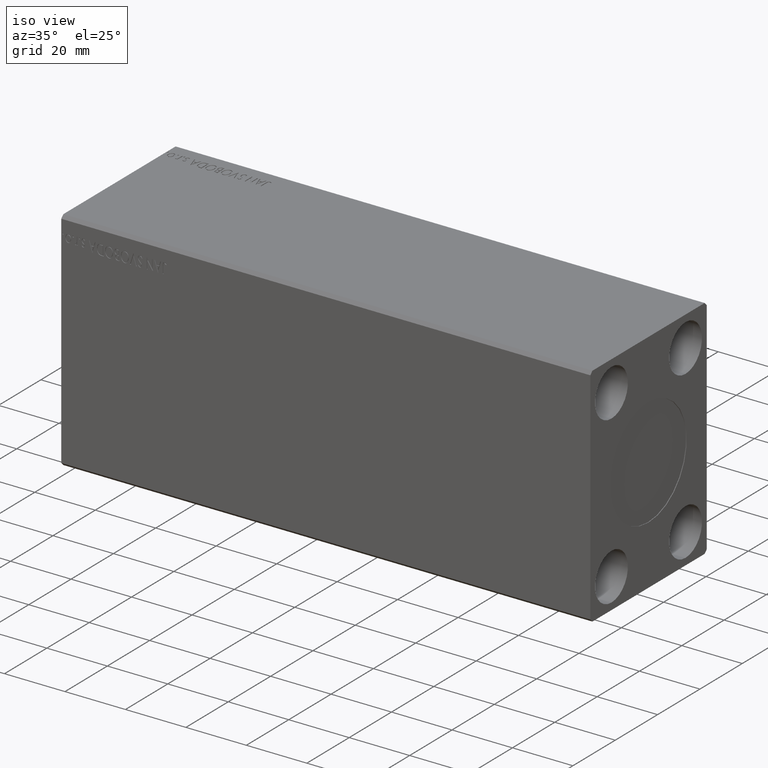
[diagram: clean part render]
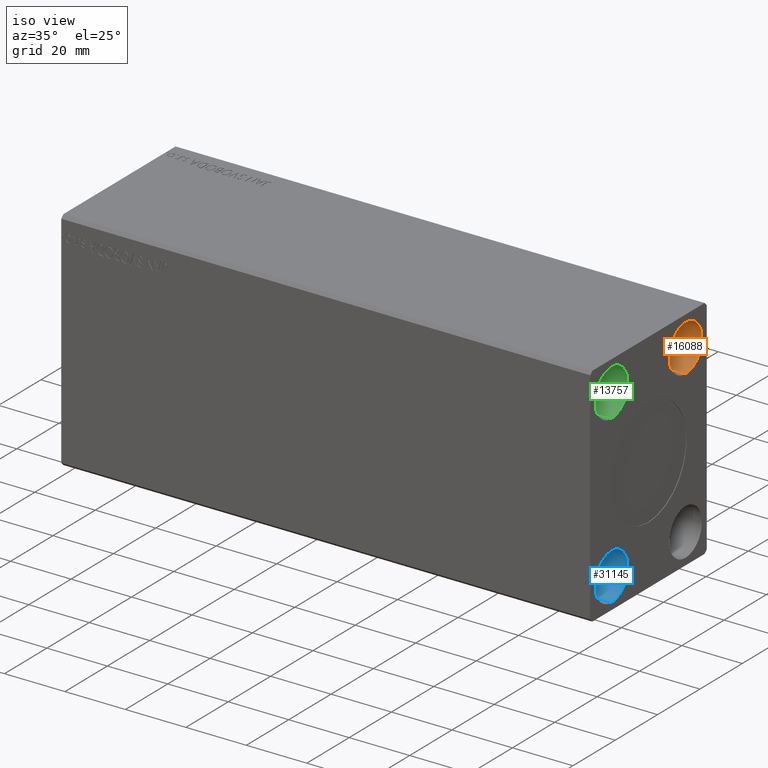
[diagram: same view with three faces highlighted in distinct colors, each labeled with its STEP entity id]
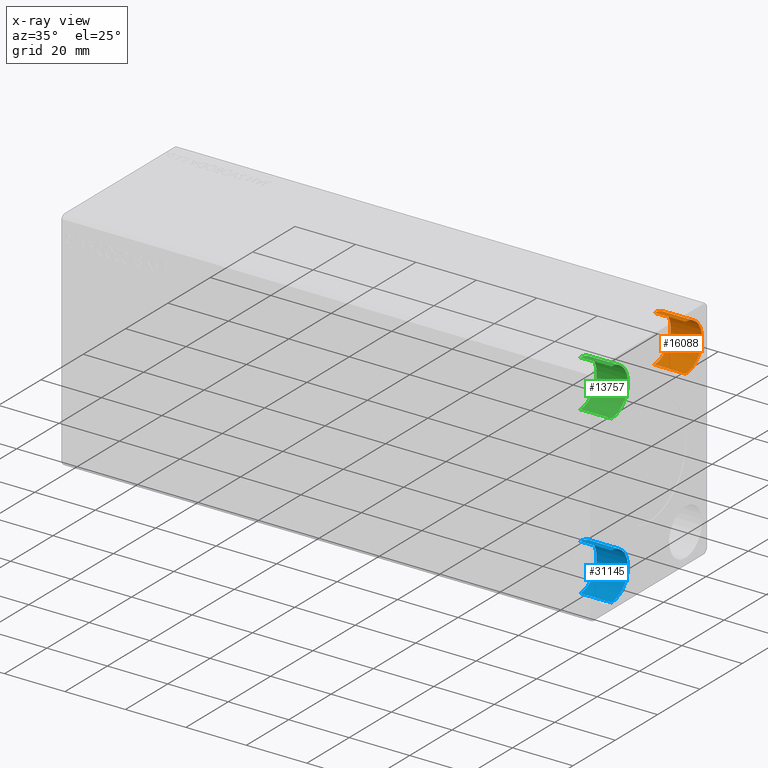
[diagram: x-ray of the same camera — body ghosted, the three highlighted faces saturated]
A machine part, iso view with three faces highlighted in distinct colors.
The next image is the same camera in x-ray (body ghosted, the three faces saturated) — at least one of them is partly hidden behind the body in this view.
Their STEP definitions:

[orange] entity #16088 — the highlighted cylindrical surface (edge-blend (fillet) strip) has radius 7.75 mm, axis along (1, -0, -0).
#805 = CARTESIAN_POINT ( 'NONE',  ( 164.6699999999999875, 17.50000000000000000, 35.25000000000000000 ) ) ;
#1330 = VERTEX_POINT ( 'NONE', #25625 ) ;
#3326 = FACE_OUTER_BOUND ( 'NONE', #16795, .T. ) ;
#5525 = VECTOR ( 'NONE', #19272, 1000.000000000000000 ) ;
#5936 = CARTESIAN_POINT ( 'NONE',  ( 164.6699999999999875, 17.50000000000000000, 19.74999999999999645 ) ) ;
#7333 = EDGE_CURVE ( 'NONE', #1330, #9648, #31793, .T. ) ;
#7776 = VERTEX_POINT ( 'NONE', #37108 ) ;
#9309 = ORIENTED_EDGE ( 'NONE', *, *, #24155, .F. ) ;
#9513 = EDGE_CURVE ( 'NONE', #9648, #7776, #26234, .T. ) ;
#9648 = VERTEX_POINT ( 'NONE', #13900 ) ;
#12568 = ORIENTED_EDGE ( 'NONE', *, *, #7333, .T. ) ;
#13900 = CARTESIAN_POINT ( 'NONE',  ( 175.0000000000000000, 17.50000000000000000, 19.74999999999999645 ) ) ;
#16088 = ADVANCED_FACE ( 'NONE', ( #3326 ), #31992, .F. ) ;
#16442 = CARTESIAN_POINT ( 'NONE',  ( 164.6699999999999875, 17.50000000000000000, 27.50000000000000000 ) ) ;
#16795 = EDGE_LOOP ( 'NONE', ( #42071, #9309, #12568, #25992 ) ) ;
#19044 = DIRECTION ( 'NONE',  ( 0.000000000000000000, 0.000000000000000000, -1.000000000000000000 ) ) ;
#19272 = DIRECTION ( 'NONE',  ( 1.000000000000000000, -0.000000000000000000, -0.000000000000000000 ) ) ;
#21524 = CARTESIAN_POINT ( 'NONE',  ( 164.6699999999999875, 17.50000000000000000, 27.50000000000000000 ) ) ;
#21665 = VECTOR ( 'NONE', #23626, 1000.000000000000000 ) ;
#22320 = DIRECTION ( 'NONE',  ( 0.000000000000000000, 0.000000000000000000, -1.000000000000000000 ) ) ;
#23466 = CARTESIAN_POINT ( 'NONE',  ( 164.6699999999999875, 17.50000000000000000, 35.25000000000000000 ) ) ;
#23626 = DIRECTION ( 'NONE',  ( 1.000000000000000000, -0.000000000000000000, -0.000000000000000000 ) ) ;
#24155 = EDGE_CURVE ( 'NONE', #1330, #33340, #33187, .T. ) ;
#24332 = DIRECTION ( 'NONE',  ( 0.000000000000000000, 0.000000000000000000, -1.000000000000000000 ) ) ;
#24966 = DIRECTION ( 'NONE',  ( 1.000000000000000000, -0.000000000000000000, -0.000000000000000000 ) ) ;
#25625 = CARTESIAN_POINT ( 'NONE',  ( 164.6699999999999875, 17.50000000000000000, 19.74999999999999645 ) ) ;
#25724 = DIRECTION ( 'NONE',  ( 1.000000000000000000, -0.000000000000000000, -0.000000000000000000 ) ) ;
#25992 = ORIENTED_EDGE ( 'NONE', *, *, #9513, .T. ) ;
#26213 = AXIS2_PLACEMENT_3D ( 'NONE', #16442, #25724, #19044 ) ;
#26234 = CIRCLE ( 'NONE', #31734, 7.750000000000003553 ) ;
#27084 = LINE ( 'NONE', #805, #21665 ) ;
#29231 = DIRECTION ( 'NONE',  ( 1.000000000000000000, -0.000000000000000000, -0.000000000000000000 ) ) ;
#31734 = AXIS2_PLACEMENT_3D ( 'NONE', #36330, #29231, #22320 ) ;
#31793 = LINE ( 'NONE', #5936, #5525 ) ;
#31992 = CYLINDRICAL_SURFACE ( 'NONE', #26213, 7.750000000000003553 ) ;
#32693 = EDGE_CURVE ( 'NONE', #33340, #7776, #27084, .T. ) ;
#33187 = CIRCLE ( 'NONE', #33881, 7.750000000000003553 ) ;
#33340 = VERTEX_POINT ( 'NONE', #23466 ) ;
#33881 = AXIS2_PLACEMENT_3D ( 'NONE', #21524, #24966, #24332 ) ;
#36330 = CARTESIAN_POINT ( 'NONE',  ( 175.0000000000000000, 17.50000000000000000, 27.50000000000000000 ) ) ;
#37108 = CARTESIAN_POINT ( 'NONE',  ( 175.0000000000000000, 17.50000000000000000, 35.25000000000000000 ) ) ;
#42071 = ORIENTED_EDGE ( 'NONE', *, *, #32693, .F. ) ;

[blue] entity #31145 — the highlighted cylindrical surface (edge-blend (fillet) strip) has radius 7.75 mm, axis along (1, -0, -0).
#364 = FACE_OUTER_BOUND ( 'NONE', #29555, .T. ) ;
#576 = CYLINDRICAL_SURFACE ( 'NONE', #34059, 7.750000000000003553 ) ;
#3048 = CARTESIAN_POINT ( 'NONE',  ( 164.6699999999999875, -17.50000000000000000, -35.25000000000000000 ) ) ;
#3502 = CARTESIAN_POINT ( 'NONE',  ( 175.0000000000000000, -17.50000000000000000, -19.74999999999999645 ) ) ;
#4853 = CARTESIAN_POINT ( 'NONE',  ( 175.0000000000000000, -17.50000000000000000, -27.50000000000000000 ) ) ;
#4933 = VECTOR ( 'NONE', #31856, 1000.000000000000000 ) ;
#6044 = VERTEX_POINT ( 'NONE', #3502 ) ;
#6392 = DIRECTION ( 'NONE',  ( 0.000000000000000000, 0.000000000000000000, -1.000000000000000000 ) ) ;
#8998 = LINE ( 'NONE', #21339, #4933 ) ;
#10510 = CIRCLE ( 'NONE', #16687, 7.750000000000003553 ) ;
#13756 = VERTEX_POINT ( 'NONE', #3048 ) ;
#14320 = DIRECTION ( 'NONE',  ( 0.000000000000000000, 0.000000000000000000, -1.000000000000000000 ) ) ;
#14838 = DIRECTION ( 'NONE',  ( 0.000000000000000000, 0.000000000000000000, -1.000000000000000000 ) ) ;
#15573 = DIRECTION ( 'NONE',  ( 1.000000000000000000, -0.000000000000000000, -0.000000000000000000 ) ) ;
#16287 = DIRECTION ( 'NONE',  ( 1.000000000000000000, -0.000000000000000000, -0.000000000000000000 ) ) ;
#16687 = AXIS2_PLACEMENT_3D ( 'NONE', #23744, #28413, #14838 ) ;
#17421 = AXIS2_PLACEMENT_3D ( 'NONE', #4853, #30724, #14320 ) ;
#19232 = CARTESIAN_POINT ( 'NONE',  ( 164.6699999999999875, -17.50000000000000000, -19.74999999999999645 ) ) ;
#19439 = ORIENTED_EDGE ( 'NONE', *, *, #26661, .T. ) ;
#20352 = ORIENTED_EDGE ( 'NONE', *, *, #22890, .F. ) ;
#20814 = ORIENTED_EDGE ( 'NONE', *, *, #22141, .T. ) ;
#21339 = CARTESIAN_POINT ( 'NONE',  ( 164.6699999999999875, -17.50000000000000000, -35.25000000000000000 ) ) ;
#22141 = EDGE_CURVE ( 'NONE', #13756, #26491, #8998, .T. ) ;
#22890 = EDGE_CURVE ( 'NONE', #40724, #6044, #28950, .T. ) ;
#22931 = CIRCLE ( 'NONE', #17421, 7.750000000000003553 ) ;
#23744 = CARTESIAN_POINT ( 'NONE',  ( 164.6699999999999875, -17.50000000000000000, -27.50000000000000000 ) ) ;
#25421 = EDGE_CURVE ( 'NONE', #13756, #40724, #10510, .T. ) ;
#26491 = VERTEX_POINT ( 'NONE', #41988 ) ;
#26661 = EDGE_CURVE ( 'NONE', #26491, #6044, #22931, .T. ) ;
#26977 = VECTOR ( 'NONE', #15573, 1000.000000000000000 ) ;
#28413 = DIRECTION ( 'NONE',  ( 1.000000000000000000, -0.000000000000000000, -0.000000000000000000 ) ) ;
#28950 = LINE ( 'NONE', #19232, #26977 ) ;
#29555 = EDGE_LOOP ( 'NONE', ( #20352, #32163, #20814, #19439 ) ) ;
#30724 = DIRECTION ( 'NONE',  ( 1.000000000000000000, -0.000000000000000000, -0.000000000000000000 ) ) ;
#31145 = ADVANCED_FACE ( 'NONE', ( #364 ), #576, .F. ) ;
#31856 = DIRECTION ( 'NONE',  ( 1.000000000000000000, -0.000000000000000000, -0.000000000000000000 ) ) ;
#31950 = CARTESIAN_POINT ( 'NONE',  ( 164.6699999999999875, -17.50000000000000000, -19.74999999999999645 ) ) ;
#32163 = ORIENTED_EDGE ( 'NONE', *, *, #25421, .F. ) ;
#34059 = AXIS2_PLACEMENT_3D ( 'NONE', #36561, #16287, #6392 ) ;
#36561 = CARTESIAN_POINT ( 'NONE',  ( 164.6699999999999875, -17.50000000000000000, -27.50000000000000000 ) ) ;
#40724 = VERTEX_POINT ( 'NONE', #31950 ) ;
#41988 = CARTESIAN_POINT ( 'NONE',  ( 175.0000000000000000, -17.50000000000000000, -35.25000000000000000 ) ) ;

[green] entity #13757 — the highlighted cylindrical surface (edge-blend (fillet) strip) has radius 7.75 mm, axis along (1, -0, -0).
#4731 = VERTEX_POINT ( 'NONE', #37629 ) ;
#5643 = DIRECTION ( 'NONE',  ( 0.000000000000000000, 0.000000000000000000, -1.000000000000000000 ) ) ;
#5841 = EDGE_CURVE ( 'NONE', #25646, #9578, #24069, .T. ) ;
#5893 = VERTEX_POINT ( 'NONE', #35619 ) ;
#6408 = DIRECTION ( 'NONE',  ( 1.000000000000000000, -0.000000000000000000, -0.000000000000000000 ) ) ;
#7561 = VECTOR ( 'NONE', #19609, 1000.000000000000000 ) ;
#9578 = VERTEX_POINT ( 'NONE', #27475 ) ;
#9788 = ORIENTED_EDGE ( 'NONE', *, *, #5841, .T. ) ;
#12936 = CYLINDRICAL_SURFACE ( 'NONE', #35274, 7.750000000000003553 ) ;
#13757 = ADVANCED_FACE ( 'NONE', ( #25230 ), #12936, .F. ) ;
#14088 = CARTESIAN_POINT ( 'NONE',  ( 164.6699999999999875, -17.50000000000000000, 27.50000000000000000 ) ) ;
#14744 = VECTOR ( 'NONE', #6408, 1000.000000000000000 ) ;
#16948 = CARTESIAN_POINT ( 'NONE',  ( 175.0000000000000000, -17.50000000000000000, 27.50000000000000000 ) ) ;
#17158 = ORIENTED_EDGE ( 'NONE', *, *, #17258, .T. ) ;
#17258 = EDGE_CURVE ( 'NONE', #9578, #5893, #23265, .T. ) ;
#17887 = ORIENTED_EDGE ( 'NONE', *, *, #35586, .F. ) ;
#19609 = DIRECTION ( 'NONE',  ( 1.000000000000000000, -0.000000000000000000, -0.000000000000000000 ) ) ;
#21527 = EDGE_CURVE ( 'NONE', #4731, #5893, #28287, .T. ) ;
#22631 = CARTESIAN_POINT ( 'NONE',  ( 164.6699999999999875, -17.50000000000000000, 19.74999999999999645 ) ) ;
#22770 = CARTESIAN_POINT ( 'NONE',  ( 164.6699999999999875, -17.50000000000000000, 35.25000000000000000 ) ) ;
#23265 = LINE ( 'NONE', #22631, #7561 ) ;
#23627 = DIRECTION ( 'NONE',  ( 0.000000000000000000, 0.000000000000000000, 1.000000000000000000 ) ) ;
#24069 = CIRCLE ( 'NONE', #33720, 7.750000000000003553 ) ;
#25230 = FACE_OUTER_BOUND ( 'NONE', #31777, .T. ) ;
#25646 = VERTEX_POINT ( 'NONE', #27105 ) ;
#26093 = CARTESIAN_POINT ( 'NONE',  ( 164.6699999999999875, -17.50000000000000000, 27.50000000000000000 ) ) ;
#27105 = CARTESIAN_POINT ( 'NONE',  ( 164.6699999999999875, -17.50000000000000000, 35.25000000000000000 ) ) ;
#27475 = CARTESIAN_POINT ( 'NONE',  ( 164.6699999999999875, -17.50000000000000000, 19.74999999999999645 ) ) ;
#28287 = CIRCLE ( 'NONE', #38631, 7.750000000000003553 ) ;
#30553 = ORIENTED_EDGE ( 'NONE', *, *, #21527, .F. ) ;
#31777 = EDGE_LOOP ( 'NONE', ( #17887, #9788, #17158, #30553 ) ) ;
#33720 = AXIS2_PLACEMENT_3D ( 'NONE', #14088, #34142, #40602 ) ;
#34142 = DIRECTION ( 'NONE',  ( -1.000000000000000000, -0.000000000000000000, -0.000000000000000000 ) ) ;
#35274 = AXIS2_PLACEMENT_3D ( 'NONE', #26093, #39248, #5643 ) ;
#35586 = EDGE_CURVE ( 'NONE', #25646, #4731, #39168, .T. ) ;
#35619 = CARTESIAN_POINT ( 'NONE',  ( 175.0000000000000000, -17.50000000000000000, 19.74999999999999645 ) ) ;
#37629 = CARTESIAN_POINT ( 'NONE',  ( 175.0000000000000000, -17.50000000000000000, 35.25000000000000000 ) ) ;
#38631 = AXIS2_PLACEMENT_3D ( 'NONE', #16948, #39387, #23627 ) ;
#39168 = LINE ( 'NONE', #22770, #14744 ) ;
#39248 = DIRECTION ( 'NONE',  ( 1.000000000000000000, -0.000000000000000000, -0.000000000000000000 ) ) ;
#39387 = DIRECTION ( 'NONE',  ( -1.000000000000000000, -0.000000000000000000, -0.000000000000000000 ) ) ;
#40602 = DIRECTION ( 'NONE',  ( 0.000000000000000000, 0.000000000000000000, 1.000000000000000000 ) ) ;